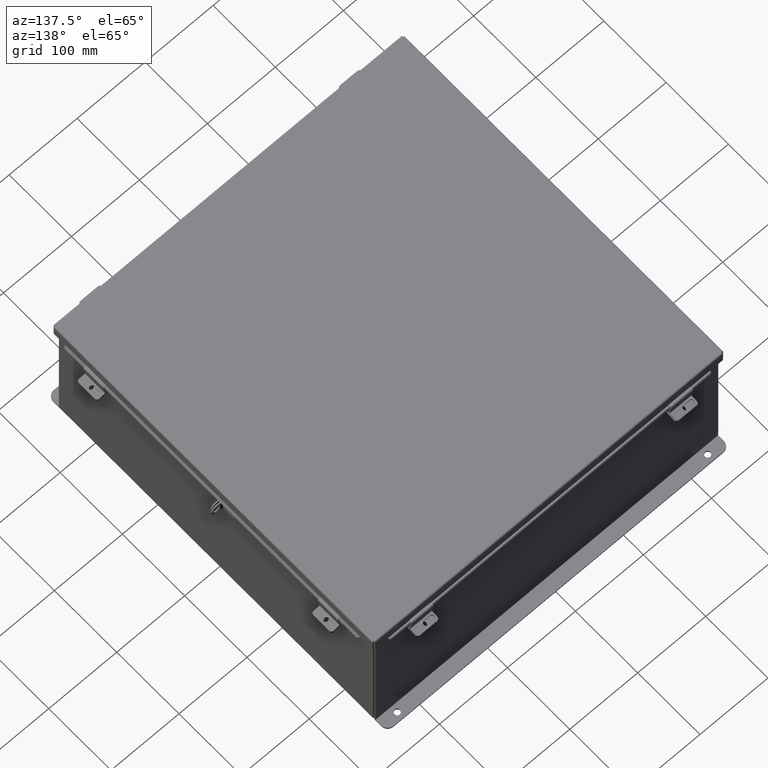
[diagram: clean part render]
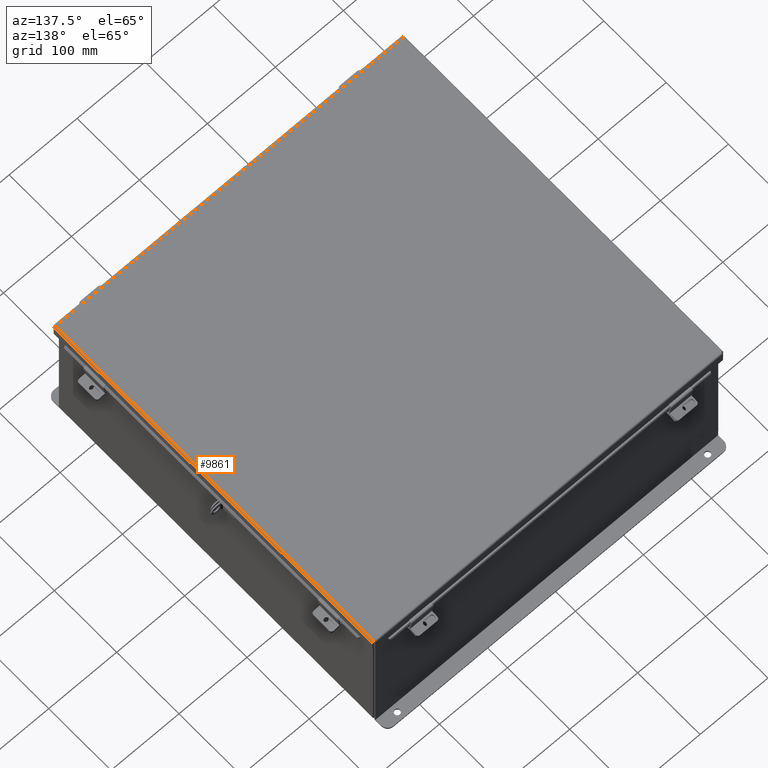
[diagram: same view with one face highlighted and labeled with its STEP entity id]
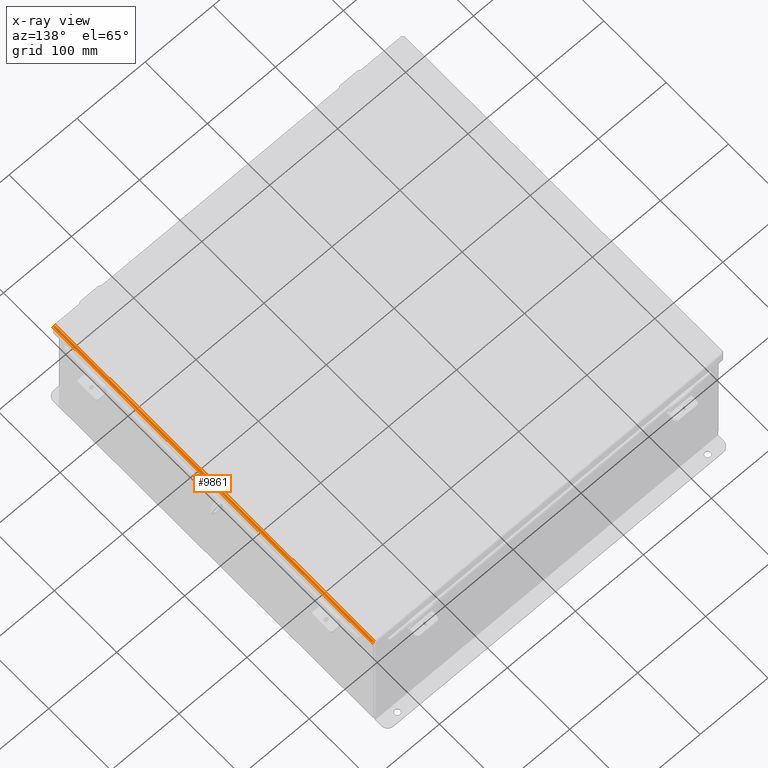
[diagram: x-ray of the same camera — body ghosted, the highlighted face saturated]
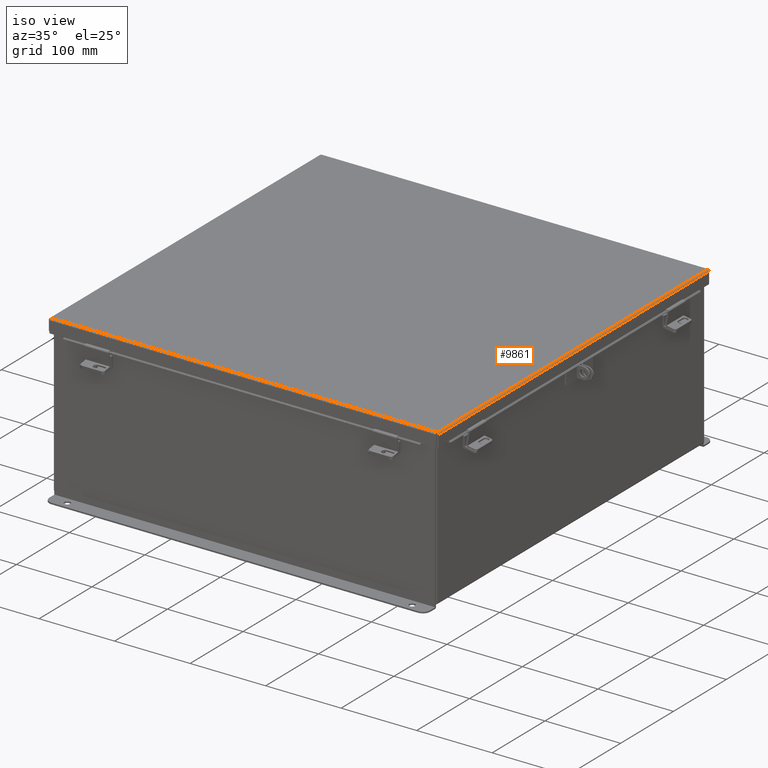
[diagram: same view with one face highlighted and labeled with its STEP entity id]
A machine part, auxiliary view. The second image highlights one B-rep face of the part: STEP entity #9861.
The next image is the same camera in x-ray: the body ghosted, the highlighted face saturated — about 0% of this face is hidden behind the body in this view.
A second angle (iso view) of the same face is appended — the face is thin or edge-on in the first view.
In plain terms, the highlighted cylindrical surface (edge-blend (fillet) strip) has radius 2.2276 mm, axis along (-0, -1, -0).
Its self-contained STEP definition (entity closure, byte-faithful):
#113 = CYLINDRICAL_SURFACE ( 'NONE', #14997, 0.08770000000000026400 ) ;
#322 = VERTEX_POINT ( 'NONE', #7513 ) ;
#603 = CARTESIAN_POINT ( 'NONE',  ( -10.09150528945834100, 10.06953815536469100, -0.07241740374381158700 ) ) ;
#1511 = VECTOR ( 'NONE', #1661, 39.37007874015748100 ) ;
#1661 = DIRECTION ( 'NONE',  ( 3.166671605124525800E-030, 1.000000000000000000, 1.853823127269377700E-029 ) ) ;
#2276 = CARTESIAN_POINT ( 'NONE',  ( -10.06855000000003200, 10.06855000000000000, -0.07469999999999907300 ) ) ;
#2356 = CARTESIAN_POINT ( 'NONE',  ( -10.12244574734182800, 10.07102038841172500, -0.05713078207832070900 ) ) ;
#3292 = CARTESIAN_POINT ( 'NONE',  ( -10.15625000000003200, -10.07447893218813200, 0.01300000000000010700 ) ) ;
#3625 = DIRECTION ( 'NONE',  ( -3.166671605124525800E-030, -1.000000000000000000, -1.853823127269377700E-029 ) ) ;
#4091 = CARTESIAN_POINT ( 'NONE',  ( -10.14518106625870400, 10.07250262145875700, -0.03116738457852815500 ) ) ;
#4861 = CARTESIAN_POINT ( 'NONE',  ( -10.15625000000003200, 10.07447893218813600, 0.01300000000000010700 ) ) ;
#5300 = CARTESIAN_POINT ( 'NONE',  ( -10.06855000000003200, -10.07447893218813200, -0.07470000000000015500 ) ) ;
#5826 = CARTESIAN_POINT ( 'NONE',  ( -10.15625000000003200, 10.07398485450579500, 0.001520096845007063500 ) ) ;
#6128 = LINE ( 'NONE', #11977, #1511 ) ;
#6769 = CARTESIAN_POINT ( 'NONE',  ( -10.14518106625869900, -10.07250262145874900, -0.03116738457852814100 ) ) ;
#7061 = DIRECTION ( 'NONE',  ( 3.166671605124525800E-030, 1.000000000000000000, 1.853823127269377700E-029 ) ) ;
#7513 = CARTESIAN_POINT ( 'NONE',  ( -10.06855000000003200, 10.06855000000000000, -0.07469999999999907300 ) ) ;
#7661 = VERTEX_POINT ( 'NONE', #18476 ) ;
#8287 = VERTEX_POINT ( 'NONE', #4861 ) ;
#8346 = B_SPLINE_CURVE_WITH_KNOTS ( 'NONE', 3,
 ( #3292, #13608, #17064, #6769, #18833, #8507, #20582, #10226, #22339, #11954 ),
 .UNSPECIFIED., .F., .F.,
 ( 4, 2, 2, 2, 4 ),
 ( 0.0000000000000000000, 0.2500000000000000000, 0.5000000000000000000, 0.7500000000000000000, 1.000000000000000000 ),
 .UNSPECIFIED. ) ;
#8507 = CARTESIAN_POINT ( 'NONE',  ( -10.12244574734183200, -10.07102038841172100, -0.05713078207832069500 ) ) ;
#9861 = ADVANCED_FACE ( 'NONE', ( #13889 ), #113, .T. ) ;
#10226 = CARTESIAN_POINT ( 'NONE',  ( -10.09150528945834100, -10.06953815536468300, -0.07241740374381157300 ) ) ;
#11837 = ORIENTED_EDGE ( 'NONE', *, *, #13915, .F. ) ;
#11954 = CARTESIAN_POINT ( 'NONE',  ( -10.06855000000003200, -10.06854999999999700, -0.07470000000000015500 ) ) ;
#11977 = CARTESIAN_POINT ( 'NONE',  ( -10.15625000000003200, 10.15625000000000200, 0.01300000000000010700 ) ) ;
#12604 = CARTESIAN_POINT ( 'NONE',  ( -10.08002990315502400, 10.06904407768234400, -0.07470000000000029400 ) ) ;
#12673 = CARTESIAN_POINT ( 'NONE',  ( -10.11271738457855900, 10.07052631072937700, -0.06363106625866869800 ) ) ;
#13608 = CARTESIAN_POINT ( 'NONE',  ( -10.15625000000003200, -10.07398485450578800, 0.001520096845007062900 ) ) ;
#13708 = LINE ( 'NONE', #5300, #22415 ) ;
#13889 = FACE_OUTER_BOUND ( 'NONE', #21799, .T. ) ;
#13915 = EDGE_CURVE ( 'NONE', #322, #8287, #16313, .T. ) ;
#14282 = EDGE_CURVE ( 'NONE', #7661, #8287, #6128, .T. ) ;
#14413 = CARTESIAN_POINT ( 'NONE',  ( -10.13868078207835500, 10.07200854377641100, -0.04089574734180034100 ) ) ;
#14959 = EDGE_CURVE ( 'NONE', #7661, #16767, #8346, .T. ) ;
#14997 = AXIS2_PLACEMENT_3D ( 'NONE', #20845, #3625, #17250 ) ;
#16103 = ORIENTED_EDGE ( 'NONE', *, *, #14959, .F. ) ;
#16135 = CARTESIAN_POINT ( 'NONE',  ( -10.15396740374384500, 10.07349077682344800, -0.009955289458309117200 ) ) ;
#16313 = B_SPLINE_CURVE_WITH_KNOTS ( 'NONE', 3,
 ( #2276, #12604, #603, #12673, #2356, #14413, #4091, #16135, #5826, #17882 ),
 .UNSPECIFIED., .F., .F.,
 ( 4, 2, 2, 2, 4 ),
 ( 0.0000000000000000000, 0.2500000000000000000, 0.5000000000000000000, 0.7500000000000000000, 1.000000000000000000 ),
 .UNSPECIFIED. ) ;
#16565 = ORIENTED_EDGE ( 'NONE', *, *, #14282, .T. ) ;
#16767 = VERTEX_POINT ( 'NONE', #19005 ) ;
#16840 = ORIENTED_EDGE ( 'NONE', *, *, #21852, .F. ) ;
#17064 = CARTESIAN_POINT ( 'NONE',  ( -10.15396740374384500, -10.07349077682344600, -0.009955289458309115500 ) ) ;
#17250 = DIRECTION ( 'NONE',  ( -1.000000000000000000, 0.0000000000000000000, -3.577373637655407700E-015 ) ) ;
#17882 = CARTESIAN_POINT ( 'NONE',  ( -10.15625000000003200, 10.07447893218813600, 0.01300000000000010700 ) ) ;
#18476 = CARTESIAN_POINT ( 'NONE',  ( -10.15625000000003200, -10.07447893218813200, 0.01300000000000010700 ) ) ;
#18833 = CARTESIAN_POINT ( 'NONE',  ( -10.13868078207835300, -10.07200854377640700, -0.04089574734180033400 ) ) ;
#19005 = CARTESIAN_POINT ( 'NONE',  ( -10.06855000000003200, -10.06854999999999700, -0.07470000000000015500 ) ) ;
#20582 = CARTESIAN_POINT ( 'NONE',  ( -10.11271738457856100, -10.07052631072937600, -0.06363106625866871100 ) ) ;
#20845 = CARTESIAN_POINT ( 'NONE',  ( -10.06855000000003200, -10.07447893218813200, 0.01300000000000010700 ) ) ;
#21799 = EDGE_LOOP ( 'NONE', ( #16840, #16103, #16565, #11837 ) ) ;
#21852 = EDGE_CURVE ( 'NONE', #16767, #322, #13708, .T. ) ;
#22339 = CARTESIAN_POINT ( 'NONE',  ( -10.08002990315502400, -10.06904407768234000, -0.07470000000000032200 ) ) ;
#22415 = VECTOR ( 'NONE', #7061, 39.37007874015748100 ) ;